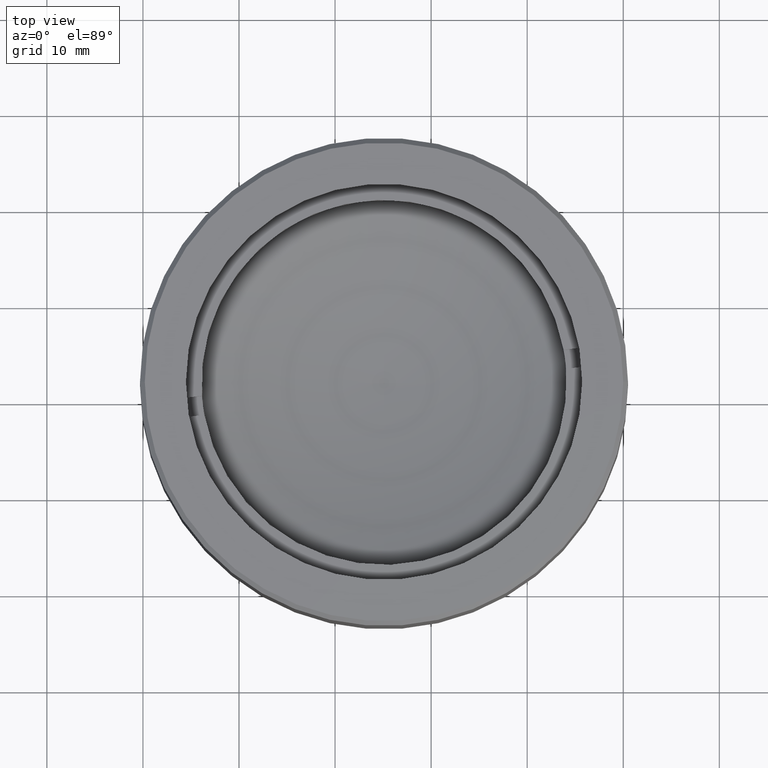
[diagram: clean part render]
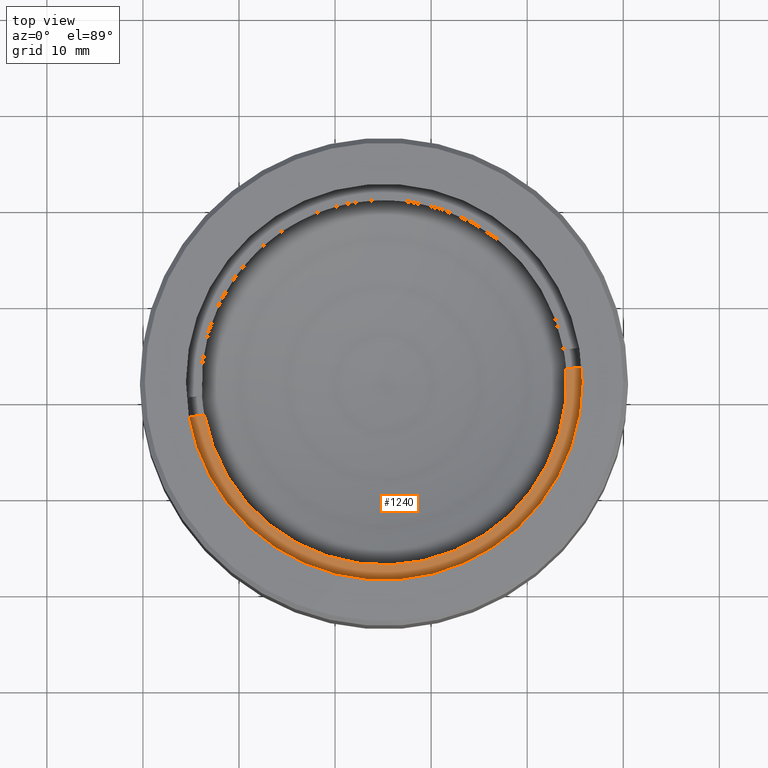
[diagram: same view with one face highlighted and labeled with its STEP entity id]
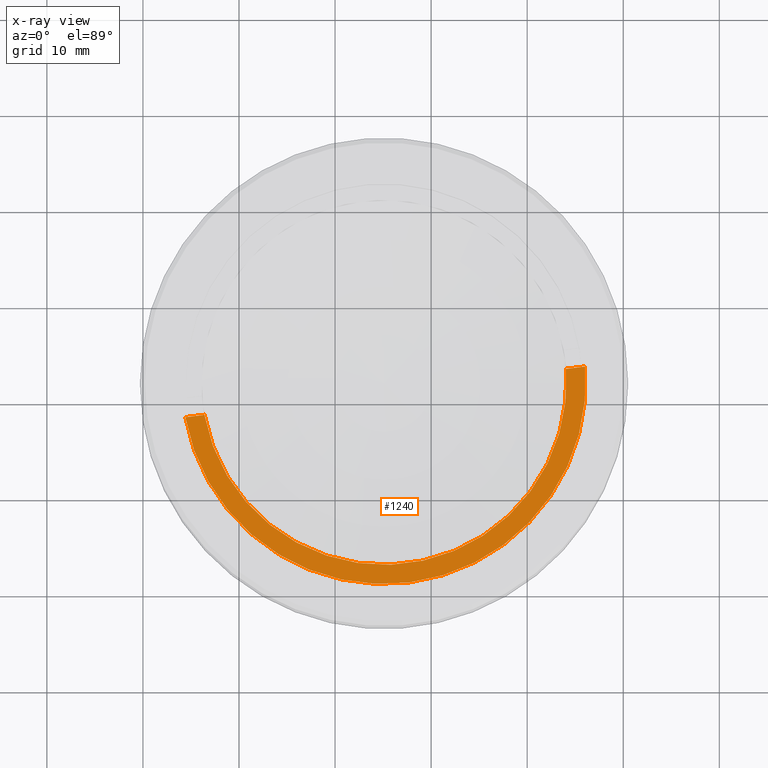
[diagram: x-ray of the same camera — body ghosted, the highlighted face saturated]
A machine part, top view. The second image highlights one B-rep face of the part: STEP entity #1240.
The next image is the same camera in x-ray: the body ghosted, the highlighted face saturated — about 0% of this face is hidden behind the body in this view.
In plain terms, the highlighted planar face has unit normal (0, 0, 1).
Its self-contained STEP definition (entity closure, byte-faithful):
#19 = CIRCLE ( 'NONE', #624, 21.00000000000000000 ) ;
#48 = AXIS2_PLACEMENT_3D ( 'NONE', #833, #1226, #555 ) ;
#122 = VERTEX_POINT ( 'NONE', #1532 ) ;
#226 = CARTESIAN_POINT ( 'NONE',  ( 0.000000000000000000, 0.000000000000000000, 2.500000000000000000 ) ) ;
#236 = AXIS2_PLACEMENT_3D ( 'NONE', #1528, #872, #609 ) ;
#240 = ORIENTED_EDGE ( 'NONE', *, *, #267, .F. ) ;
#267 = EDGE_CURVE ( 'NONE', #122, #686, #702, .T. ) ;
#333 = DIRECTION ( 'NONE',  ( 0.000000000000000000, 0.000000000000000000, 1.000000000000000000 ) ) ;
#346 = FACE_OUTER_BOUND ( 'NONE', #1110, .T. ) ;
#422 = CARTESIAN_POINT ( 'NONE',  ( -30.62185530834360492, -1.000000000000000000, 2.500000000000000000 ) ) ;
#464 = DIRECTION ( 'NONE',  ( 1.000000000000000000, 0.000000000000000000, 0.000000000000000000 ) ) ;
#555 = DIRECTION ( 'NONE',  ( 1.000000000000000000, 0.000000000000000000, 0.000000000000000000 ) ) ;
#556 = ORIENTED_EDGE ( 'NONE', *, *, #1569, .F. ) ;
#609 = DIRECTION ( 'NONE',  ( 1.000000000000000000, 0.000000000000000000, -0.000000000000000000 ) ) ;
#622 = VERTEX_POINT ( 'NONE', #757 ) ;
#624 = AXIS2_PLACEMENT_3D ( 'NONE', #226, #333, #464 ) ;
#672 = ORIENTED_EDGE ( 'NONE', *, *, #1146, .F. ) ;
#686 = VERTEX_POINT ( 'NONE', #1138 ) ;
#702 = CIRCLE ( 'NONE', #48, 19.00000000000000000 ) ;
#717 = VECTOR ( 'NONE', #1334, 1000.000000000000000 ) ;
#757 = CARTESIAN_POINT ( 'NONE',  ( -20.97617696340303084, -1.000000000000000000, 2.500000000000000000 ) ) ;
#828 = LINE ( 'NONE', #422, #717 ) ;
#833 = CARTESIAN_POINT ( 'NONE',  ( 0.000000000000000000, 0.000000000000000000, 2.500000000000000000 ) ) ;
#863 = PLANE ( 'NONE',  #236 ) ;
#872 = DIRECTION ( 'NONE',  ( 0.000000000000000000, 0.000000000000000000, 1.000000000000000000 ) ) ;
#1110 = EDGE_LOOP ( 'NONE', ( #672, #1421, #556, #240 ) ) ;
#1138 = CARTESIAN_POINT ( 'NONE',  ( 18.97366596101027625, -1.000000000000000000, 2.500000000000000000 ) ) ;
#1146 = EDGE_CURVE ( 'NONE', #622, #122, #1358, .T. ) ;
#1159 = VERTEX_POINT ( 'NONE', #1624 ) ;
#1226 = DIRECTION ( 'NONE',  ( 0.000000000000000000, 0.000000000000000000, 1.000000000000000000 ) ) ;
#1239 = CARTESIAN_POINT ( 'NONE',  ( -30.62185530834360492, -1.000000000000000000, 2.500000000000000000 ) ) ;
#1240 = ADVANCED_FACE ( 'NONE', ( #346 ), #863, .T. ) ;
#1334 = DIRECTION ( 'NONE',  ( 1.000000000000000000, 0.000000000000000000, 0.000000000000000000 ) ) ;
#1358 = LINE ( 'NONE', #1239, #1429 ) ;
#1360 = EDGE_CURVE ( 'NONE', #622, #1159, #19, .T. ) ;
#1363 = DIRECTION ( 'NONE',  ( 1.000000000000000000, 0.000000000000000000, 0.000000000000000000 ) ) ;
#1421 = ORIENTED_EDGE ( 'NONE', *, *, #1360, .T. ) ;
#1429 = VECTOR ( 'NONE', #1363, 1000.000000000000000 ) ;
#1528 = CARTESIAN_POINT ( 'NONE',  ( 0.000000000000000000, 0.000000000000000000, 2.500000000000000000 ) ) ;
#1532 = CARTESIAN_POINT ( 'NONE',  ( -18.97366596101027625, -1.000000000000000000, 2.500000000000000000 ) ) ;
#1569 = EDGE_CURVE ( 'NONE', #686, #1159, #828, .T. ) ;
#1624 = CARTESIAN_POINT ( 'NONE',  ( 20.97617696340303084, -1.000000000000000000, 2.500000000000000000 ) ) ;